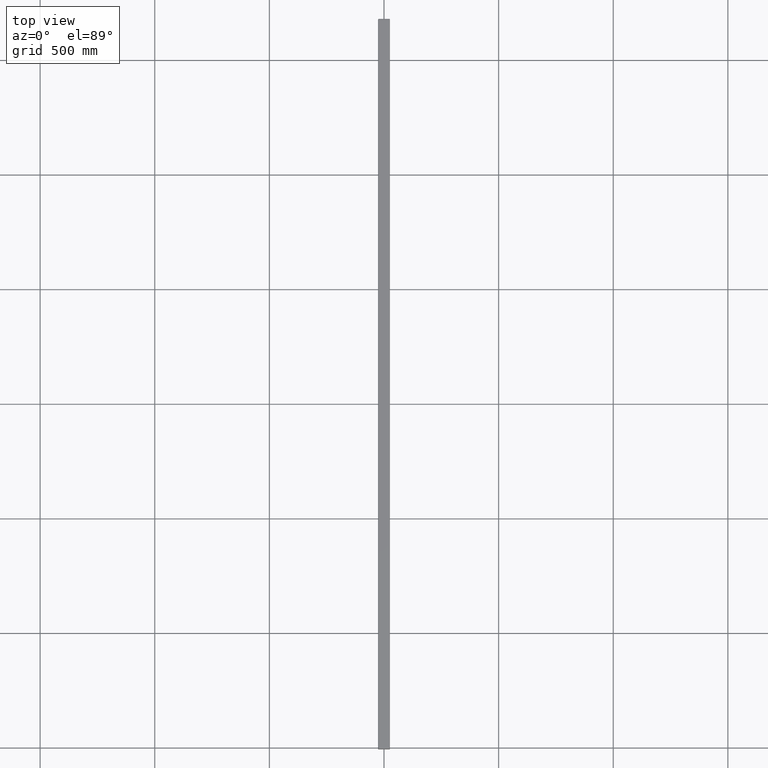
[diagram: clean part render]
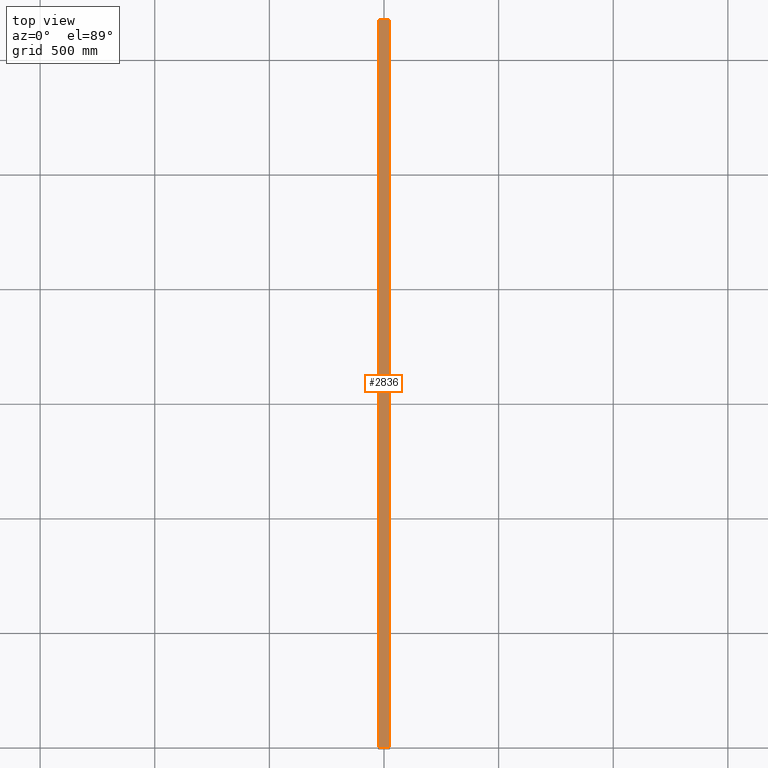
[diagram: same view with one face highlighted and labeled with its STEP entity id]
A machine part, top view. The second image highlights one B-rep face of the part: STEP entity #2836.
In plain terms, the highlighted planar face has unit normal (0, 0, -1).
Its self-contained STEP definition (entity closure, byte-faithful):
#160 = ORIENTED_EDGE ( 'NONE', *, *, #224, .T. ) ;
#224 = EDGE_CURVE ( 'NONE', #2183, #1301, #1949, .T. ) ;
#513 = LINE ( 'NONE', #1787, #2530 ) ;
#874 = DIRECTION ( 'NONE',  ( 0.000000000000000000, 0.000000000000000000, -1.000000000000000000 ) ) ;
#1160 = PLANE ( 'NONE',  #1658 ) ;
#1202 = DIRECTION ( 'NONE',  ( -0.000000000000000000, -1.000000000000000000, -0.000000000000000000 ) ) ;
#1219 = DIRECTION ( 'NONE',  ( -0.000000000000000000, -0.000000000000000000, -1.000000000000000000 ) ) ;
#1301 = VERTEX_POINT ( 'NONE', #2011 ) ;
#1479 = CARTESIAN_POINT ( 'NONE',  ( -1.000000000000000000, -0.8506000000000000227, 62.50000000000000000 ) ) ;
#1639 = CARTESIAN_POINT ( 'NONE',  ( -1.000000000000000000, -0.8506000000000000227, 62.50000000000000000 ) ) ;
#1658 = AXIS2_PLACEMENT_3D ( 'NONE', #2441, #3335, #874 ) ;
#1714 = EDGE_CURVE ( 'NONE', #2183, #3863, #2916, .T. ) ;
#1787 = CARTESIAN_POINT ( 'NONE',  ( -0.9999999999999998890, -0.8506000000000000227, -62.50000000000000000 ) ) ;
#1949 = LINE ( 'NONE', #3518, #2378 ) ;
#2011 = CARTESIAN_POINT ( 'NONE',  ( -0.9999999999999998890, 0.8506000000000000227, -62.50000000000000000 ) ) ;
#2014 = EDGE_CURVE ( 'NONE', #3863, #3485, #3057, .T. ) ;
#2105 = EDGE_LOOP ( 'NONE', ( #3031, #2890, #4119, #160 ) ) ;
#2183 = VERTEX_POINT ( 'NONE', #3337 ) ;
#2332 = CARTESIAN_POINT ( 'NONE',  ( -1.000000000000000000, -0.8506000000000000227, -62.50000000000000000 ) ) ;
#2378 = VECTOR ( 'NONE', #2942, 39.37007874015748143 ) ;
#2441 = CARTESIAN_POINT ( 'NONE',  ( -0.9999999999999998890, -0.8506000000000000227, 62.50000000000000000 ) ) ;
#2449 = VECTOR ( 'NONE', #1219, 39.37007874015748143 ) ;
#2530 = VECTOR ( 'NONE', #1202, 39.37007874015748143 ) ;
#2757 = FACE_OUTER_BOUND ( 'NONE', #2105, .T. ) ;
#2836 = ADVANCED_FACE ( 'NONE', ( #2757 ), #1160, .F. ) ;
#2890 = ORIENTED_EDGE ( 'NONE', *, *, #2014, .F. ) ;
#2916 = LINE ( 'NONE', #3244, #3971 ) ;
#2942 = DIRECTION ( 'NONE',  ( -0.000000000000000000, -0.000000000000000000, -1.000000000000000000 ) ) ;
#3031 = ORIENTED_EDGE ( 'NONE', *, *, #3656, .T. ) ;
#3057 = LINE ( 'NONE', #1479, #2449 ) ;
#3182 = DIRECTION ( 'NONE',  ( -0.000000000000000000, -1.000000000000000000, -0.000000000000000000 ) ) ;
#3244 = CARTESIAN_POINT ( 'NONE',  ( -0.9999999999999998890, -0.8506000000000000227, 62.50000000000000000 ) ) ;
#3335 = DIRECTION ( 'NONE',  ( 1.000000000000000000, 0.000000000000000000, 0.000000000000000000 ) ) ;
#3337 = CARTESIAN_POINT ( 'NONE',  ( -0.9999999999999998890, 0.8506000000000000227, 62.50000000000000000 ) ) ;
#3485 = VERTEX_POINT ( 'NONE', #2332 ) ;
#3518 = CARTESIAN_POINT ( 'NONE',  ( -0.9999999999999998890, 0.8506000000000000227, 62.50000000000000000 ) ) ;
#3656 = EDGE_CURVE ( 'NONE', #1301, #3485, #513, .T. ) ;
#3863 = VERTEX_POINT ( 'NONE', #1639 ) ;
#3971 = VECTOR ( 'NONE', #3182, 39.37007874015748143 ) ;
#4119 = ORIENTED_EDGE ( 'NONE', *, *, #1714, .F. ) ;